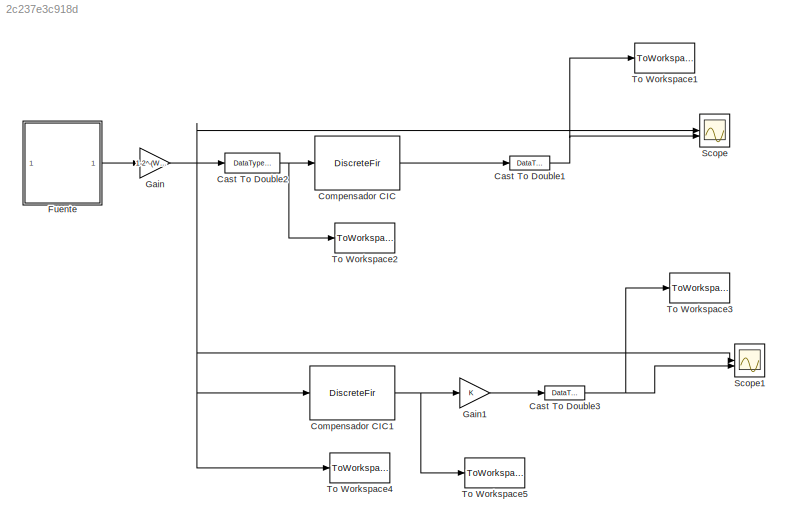
MODEL slx_2c237e3c918d
KIND model
CONFIG AbsTol = auto
CONFIG EnableMultiTasking = on
CONFIG FixedStep = auto
CONFIG MaxStep = auto
CONFIG MinStep = auto
CONFIG RelTol = 1e-3
CONFIG SampleTimeConstraint = Unconstrained
CONFIG SolverName = VariableStepAuto
CONFIG StartTime = 0.0
CONFIG StopTime = 2e-3
BLOCK [DataTypeConversion] Cast To Double1
  OutDataTypeStr = double
  RndMeth = Floor
  SaturateOnIntegerOverflow = off
BLOCK [DataTypeConversion] Cast To Double2
  OutDataTypeStr = double
  RndMeth = Floor
  SaturateOnIntegerOverflow = off
BLOCK [DataTypeConversion] Cast To Double3
  OutDataTypeStr = double
  RndMeth = Floor
  SaturateOnIntegerOverflow = off
BLOCK [DiscreteFir] Compensador CIC
  Coefficients = h_comp_cic
  InputPortMap = u0
  InputProcessing = Columns as channels (frame based)
  OutputPortMap = o0
BLOCK [DiscreteFir] Compensador CIC1
  AccumDataTypeStr = fixdt(1,Waccum,Faccum)
  CoefDataTypeStr = fixdt(1,Wcoef,Fcoef)
  Coefficients = h_comp_cic
  InputPortMap = u0
  InputProcessing = Columns as channels (frame based)
  OutDataTypeStr = fixdt(1,Wout,Fout)
  OutputPortMap = o0
  ProductDataTypeStr = fixdt(1,Wmult,Fmult)
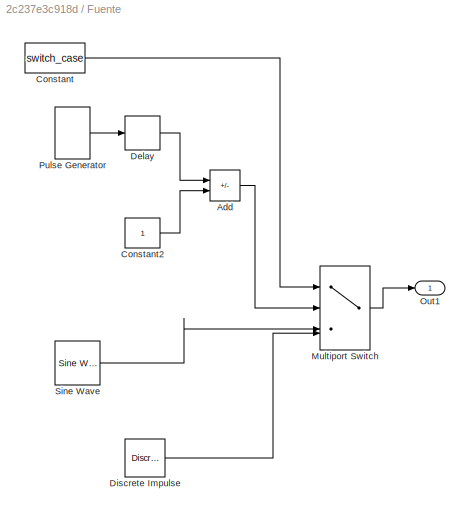
BLOCK [SubSystem] Fuente
BLOCK [Sum] Fuente/Add
  IconShape = rectangular
  Inputs = +-
BLOCK [Constant] Fuente/Constant
  Value = switch_case
BLOCK [Constant] Fuente/Constant2
BLOCK [Delay] Fuente/Delay
  DelayLength = 1
  InitialCondition = 0
  InputPortMap = u0
  SampleTime = 1/(fsL*1000)
BLOCK [Reference] Fuente/Discrete Impulse  REF=dspsrcs4/Discrete 
Impulse
  SourceBlock = dspsrcs4/Discrete \nImpulse
  SourceType = Discrete Impulse
BLOCK [MultiPortSwitch] Fuente/Multiport Switch
  InputSameDT = off
  SaturateOnIntegerOverflow = off
BLOCK [Outport] Fuente/Out1
  VectorParamsAs1DForOutWhenUnconnected = off
BLOCK [DiscretePulseGenerator] Fuente/Pulse Generator
  Amplitude = 2
  Period = 1/(fo*1000)
  PulseType = Time based
  PulseWidth = 50
  SampleTime = 1/(fsL*1000)
BLOCK [Reference] Fuente/Sine Wave  REF=dspsrcs4/Sine Wave
  SourceBlock = dspsrcs4/Sine Wave
  SourceType = Sine Wave
BLOCK [Gain] Gain
  Gain = 1-2^-(Win-1)
  OutDataTypeStr = fixdt(1,Win,Fin)
  ParamDataTypeStr = fixdt(1,16,15)
BLOCK [Gain] Gain1
  OutDataTypeStr = fixdt(1,Wout,Fout)
  ParamDataTypeStr = fixdt(1,Wout,Fout)
BLOCK [Scope] Scope
  Floating = off
  NumInputPorts = 2
  ScopeSpecificationString = Simulink.scopes.TimeScopeBlockCfg('CurrentConfiguration', extmgr.ConfigurationSet(extmgr.Configuration('Core','General UI',true),extmgr.Configuration('Core','Source UI',true),extmgr.Configuration('Sources','WiredSimulink',true,'DataLoggingVariableName','ScopeData1'),extmgr.Configuration('Visuals','Time Domain',true,'SerializedDisplays',{struct('MinYLimReal','-1.24996','MaxYLimReal','1.24996','YLab...<+1973ch>
BLOCK [Scope] Scope1
  Floating = off
  NumInputPorts = 2
  ScopeSpecificationString = Simulink.scopes.TimeScopeBlockCfg('CurrentConfiguration', extmgr.ConfigurationSet(extmgr.Configuration('Core','General UI',true),extmgr.Configuration('Core','Source UI',true),extmgr.Configuration('Sources','WiredSimulink',true,'DataLoggingVariableName','ScopeData1'),extmgr.Configuration('Visuals','Time Domain',true,'SerializedDisplays',{struct('MinYLimReal','-1.24996','MaxYLimReal','1.24996','YLab...<+1973ch>
BLOCK [ToWorkspace] To Workspace1
  FixptAsFi = on
  MaxDataPoints = inf
  SampleTime = -1
  Save2DSignal = 2-D array (concatenate along first dimension)
  VariableName = s_out
BLOCK [ToWorkspace] To Workspace2
  FixptAsFi = on
  MaxDataPoints = inf
  SampleTime = -1
  Save2DSignal = 2-D array (concatenate along first dimension)
  VariableName = s_in
BLOCK [ToWorkspace] To Workspace3
  FixptAsFi = on
  MaxDataPoints = inf
  SampleTime = -1
  Save2DSignal = 2-D array (concatenate along first dimension)
  VariableName = s_out_quant
BLOCK [ToWorkspace] To Workspace4
  FixptAsFi = on
  MaxDataPoints = inf
  SampleTime = -1
  Save2DSignal = 2-D array (concatenate along first dimension)
  VariableName = s_in_quant
BLOCK [ToWorkspace] To Workspace5
  FixptAsFi = on
  MaxDataPoints = inf
  SampleTime = -1
  Save2DSignal = 2-D array (concatenate along first dimension)
  VariableName = s_out_debug
NET Cast To Double1:1 -> Scope:2, To Workspace1:1
NET Cast To Double2:1 -> Compensador CIC:1, To Workspace2:1
NET Cast To Double3:1 -> Scope1:2, To Workspace3:1
NET Compensador CIC1:1 -> Gain1:1, To Workspace5:1
LINE Compensador CIC:1 -> Cast To Double1:1
LINE Fuente/Add:1 -> Fuente/Multiport Switch:2
LINE Fuente/Constant2:1 -> Fuente/Add:2
LINE Fuente/Constant:1 -> Fuente/Multiport Switch:1
LINE Fuente/Delay:1 -> Fuente/Add:1
LINE Fuente/Discrete Impulse:1 -> Fuente/Multiport Switch:4
LINE Fuente/Multiport Switch:1 -> Fuente/Out1:1
LINE Fuente/Pulse Generator:1 -> Fuente/Delay:1
LINE Fuente/Sine Wave:1 -> Fuente/Multiport Switch:3
LINE Fuente:1 -> Gain:1
LINE Gain1:1 -> Cast To Double3:1
NET Gain:1 -> Cast To Double2:1, Compensador CIC1:1, Scope1:1, Scope:1, To Workspace4:1
note: NET lines group one-source signal fan-out (src -> all destinations, sorted); 1:1 wires keep LINE
